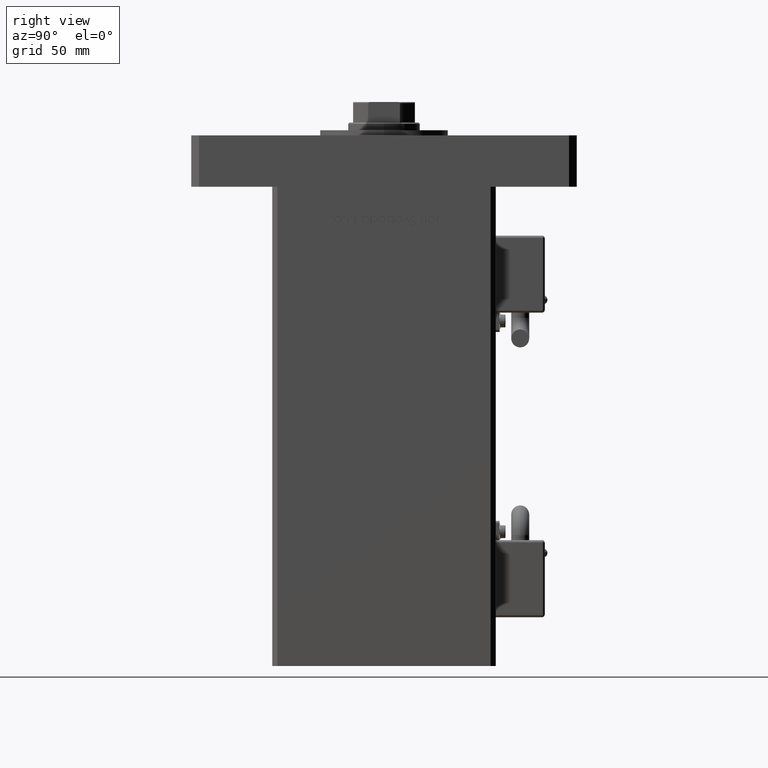
[diagram: clean part render]
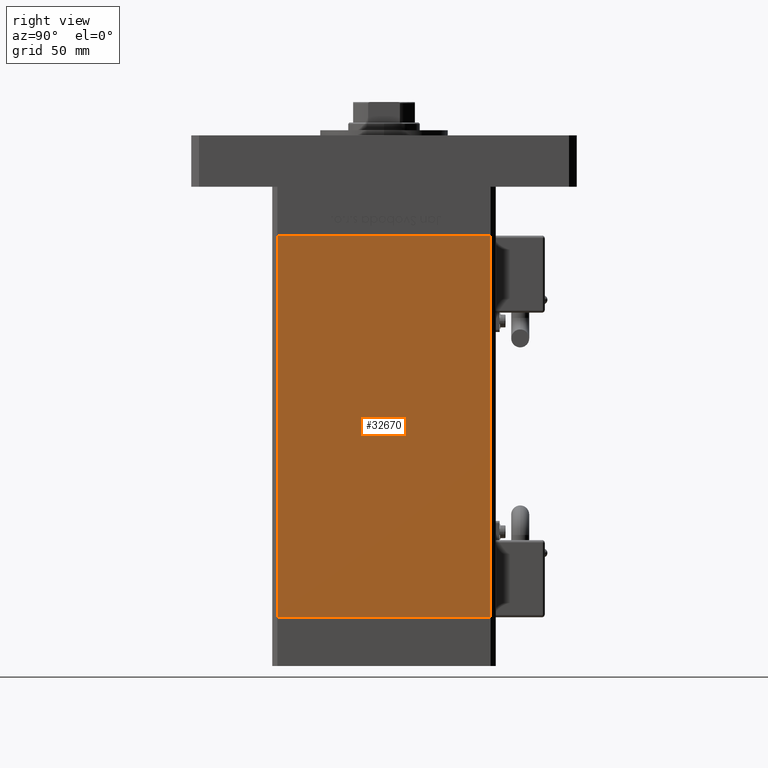
[diagram: same view with one face highlighted and labeled with its STEP entity id]
A machine part, right view. The second image highlights one B-rep face of the part: STEP entity #32670.
In plain terms, the highlighted planar face has unit normal (1, -0, 0).
Its self-contained STEP definition (entity closure, byte-faithful):
#1546 = ORIENTED_EDGE ( 'NONE', *, *, #51565, .T. ) ;
#7012 = CARTESIAN_POINT ( 'NONE',  ( 50.00000000000001421, 41.49999999999999289, 0.000000000000000000 ) ) ;
#7837 = CARTESIAN_POINT ( 'NONE',  ( 50.00000000000001421, 41.49999999999999289, 148.5000000000000000 ) ) ;
#8121 = PLANE ( 'NONE',  #14060 ) ;
#9626 = EDGE_CURVE ( 'NONE', #31383, #30958, #36587, .T. ) ;
#14060 = AXIS2_PLACEMENT_3D ( 'NONE', #7837, #30315, #25133 ) ;
#15602 = CARTESIAN_POINT ( 'NONE',  ( 49.99999999999998579, -41.49999999999999289, 148.5000000000000000 ) ) ;
#16871 = ORIENTED_EDGE ( 'NONE', *, *, #37148, .F. ) ;
#20483 = DIRECTION ( 'NONE',  ( -0.000000000000000000, -0.000000000000000000, -1.000000000000000000 ) ) ;
#21166 = LINE ( 'NONE', #38723, #52301 ) ;
#21187 = EDGE_LOOP ( 'NONE', ( #28504, #16871, #31310, #1546 ) ) ;
#22708 = CARTESIAN_POINT ( 'NONE',  ( 50.00000000000001421, 41.49999999999999289, 148.5000000000000000 ) ) ;
#25133 = DIRECTION ( 'NONE',  ( 3.344045254895050480E-16, 1.000000000000000000, 0.000000000000000000 ) ) ;
#27026 = DIRECTION ( 'NONE',  ( -3.344045254895050973E-16, -1.000000000000000000, 0.000000000000000000 ) ) ;
#27967 = DIRECTION ( 'NONE',  ( -3.344045254895050973E-16, -1.000000000000000000, 0.000000000000000000 ) ) ;
#28504 = ORIENTED_EDGE ( 'NONE', *, *, #9626, .F. ) ;
#30092 = DIRECTION ( 'NONE',  ( -0.000000000000000000, -0.000000000000000000, -1.000000000000000000 ) ) ;
#30315 = DIRECTION ( 'NONE',  ( 1.000000000000000000, -3.344045254895050480E-16, 0.000000000000000000 ) ) ;
#30782 = VECTOR ( 'NONE', #27967, 1000.000000000000000 ) ;
#30958 = VERTEX_POINT ( 'NONE', #53876 ) ;
#31310 = ORIENTED_EDGE ( 'NONE', *, *, #43999, .T. ) ;
#31383 = VERTEX_POINT ( 'NONE', #7012 ) ;
#32670 = ADVANCED_FACE ( 'NONE', ( #47592 ), #8121, .T. ) ;
#36226 = VERTEX_POINT ( 'NONE', #48741 ) ;
#36587 = LINE ( 'NONE', #36870, #30782 ) ;
#36870 = CARTESIAN_POINT ( 'NONE',  ( 50.00000000000001421, 41.49999999999999289, 0.000000000000000000 ) ) ;
#37148 = EDGE_CURVE ( 'NONE', #36226, #31383, #21166, .T. ) ;
#38723 = CARTESIAN_POINT ( 'NONE',  ( 50.00000000000001421, 41.49999999999999289, 148.5000000000000000 ) ) ;
#38914 = VECTOR ( 'NONE', #20483, 1000.000000000000000 ) ;
#40730 = CARTESIAN_POINT ( 'NONE',  ( 49.99999999999998579, -41.49999999999999289, 148.5000000000000000 ) ) ;
#43726 = LINE ( 'NONE', #22708, #51512 ) ;
#43999 = EDGE_CURVE ( 'NONE', #36226, #52272, #43726, .T. ) ;
#47592 = FACE_OUTER_BOUND ( 'NONE', #21187, .T. ) ;
#48741 = CARTESIAN_POINT ( 'NONE',  ( 50.00000000000001421, 41.49999999999999289, 148.5000000000000000 ) ) ;
#50186 = LINE ( 'NONE', #15602, #38914 ) ;
#51512 = VECTOR ( 'NONE', #27026, 1000.000000000000000 ) ;
#51565 = EDGE_CURVE ( 'NONE', #52272, #30958, #50186, .T. ) ;
#52272 = VERTEX_POINT ( 'NONE', #40730 ) ;
#52301 = VECTOR ( 'NONE', #30092, 1000.000000000000000 ) ;
#53876 = CARTESIAN_POINT ( 'NONE',  ( 49.99999999999998579, -41.49999999999999289, 0.000000000000000000 ) ) ;